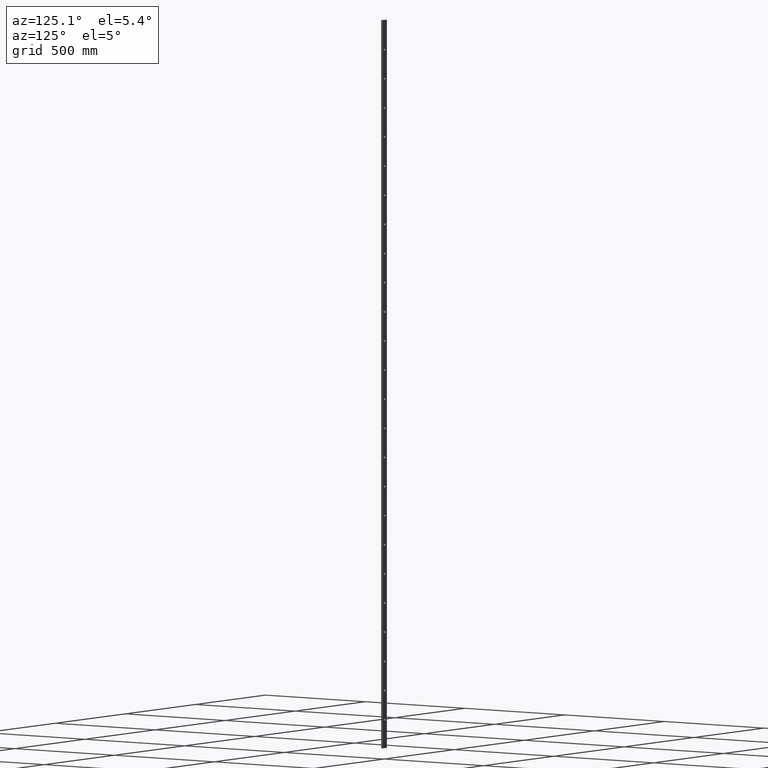
[diagram: clean part render]
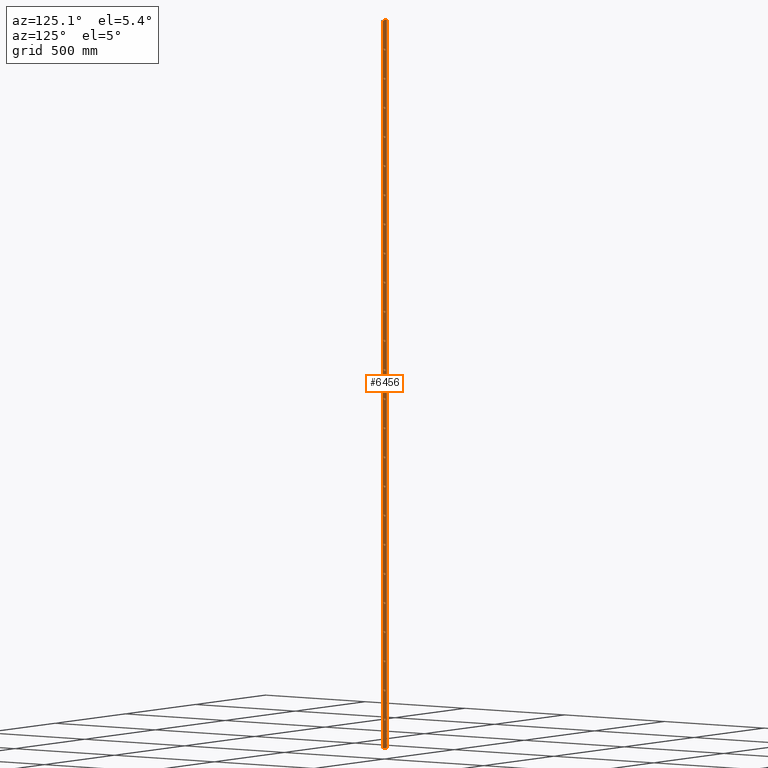
[diagram: same view with one face highlighted and labeled with its STEP entity id]
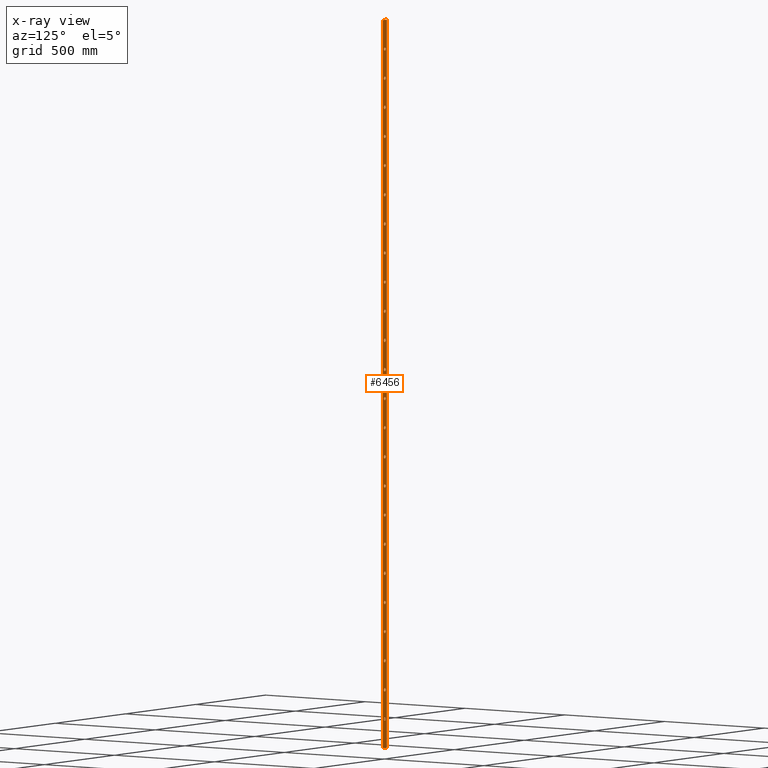
[diagram: x-ray of the same camera — body ghosted, the highlighted face saturated]
A machine part, auxiliary view. The second image highlights one B-rep face of the part: STEP entity #6456.
The next image is the same camera in x-ray: the body ghosted, the highlighted face saturated — about 0% of this face is hidden behind the body in this view.
In plain terms, the highlighted planar face has unit normal (-0, 1, 0).
Its self-contained STEP definition (entity closure, byte-faithful):
#131 = EDGE_CURVE ( 'NONE', #6236, #6236, #2662, .T. ) ;
#156 = PLANE ( 'NONE',  #9725 ) ;
#167 = EDGE_CURVE ( 'NONE', #7438, #1329, #10499, .T. ) ;
#171 = FACE_BOUND ( 'NONE', #12069, .T. ) ;
#186 = FACE_BOUND ( 'NONE', #2432, .T. ) ;
#188 = DIRECTION ( 'NONE',  ( 0.000000000000000000, 1.000000000000000000, 0.000000000000000000 ) ) ;
#196 = DIRECTION ( 'NONE',  ( 0.000000000000000000, 0.000000000000000000, -1.000000000000000000 ) ) ;
#199 = EDGE_CURVE ( 'NONE', #7475, #7475, #3536, .T. ) ;
#267 = LINE ( 'NONE', #3348, #620 ) ;
#318 = CARTESIAN_POINT ( 'NONE',  ( 0.000000000000000000, 4.000000000000000000, -1020.000000000000000 ) ) ;
#473 = AXIS2_PLACEMENT_3D ( 'NONE', #5927, #188, #2380 ) ;
#531 = EDGE_CURVE ( 'NONE', #6603, #6603, #7193, .T. ) ;
#620 = VECTOR ( 'NONE', #14388, 1000.000000000000000 ) ;
#813 = EDGE_LOOP ( 'NONE', ( #7360 ) ) ;
#897 = EDGE_LOOP ( 'NONE', ( #9498 ) ) ;
#951 = CIRCLE ( 'NONE', #3714, 6.500000000000117240 ) ;
#955 = VERTEX_POINT ( 'NONE', #5858 ) ;
#1017 = AXIS2_PLACEMENT_3D ( 'NONE', #2824, #3904, #4961 ) ;
#1025 = CARTESIAN_POINT ( 'NONE',  ( 0.000000000000000000, 4.000000000000000000, 1020.000000000000000 ) ) ;
#1040 = ORIENTED_EDGE ( 'NONE', *, *, #9053, .F. ) ;
#1109 = EDGE_LOOP ( 'NONE', ( #1474 ) ) ;
#1133 = CARTESIAN_POINT ( 'NONE',  ( 0.000000000000000000, 4.000000000000000000, -1259.999999999999773 ) ) ;
#1138 = DIRECTION ( 'NONE',  ( 0.000000000000000000, 1.000000000000000000, 0.000000000000000000 ) ) ;
#1211 = CARTESIAN_POINT ( 'NONE',  ( 0.000000000000000000, 4.000000000000000000, -899.9999999999998863 ) ) ;
#1246 = EDGE_LOOP ( 'NONE', ( #8042 ) ) ;
#1297 = CARTESIAN_POINT ( 'NONE',  ( 0.000000000000000000, 4.000000000000000000, 186.5000000000000568 ) ) ;
#1325 = EDGE_CURVE ( 'NONE', #5884, #5884, #5788, .T. ) ;
#1329 = VERTEX_POINT ( 'NONE', #2115 ) ;
#1337 = EDGE_CURVE ( 'NONE', #11476, #11476, #3524, .T. ) ;
#1394 = CARTESIAN_POINT ( 'NONE',  ( 0.000000000000000000, 4.000000000000000000, 306.4999999999996021 ) ) ;
#1474 = ORIENTED_EDGE ( 'NONE', *, *, #1337, .F. ) ;
#1498 = VERTEX_POINT ( 'NONE', #8003 ) ;
#1561 = EDGE_LOOP ( 'NONE', ( #13700 ) ) ;
#1576 = DIRECTION ( 'NONE',  ( 0.000000000000000000, 0.000000000000000000, 1.000000000000000000 ) ) ;
#1579 = AXIS2_PLACEMENT_3D ( 'NONE', #1025, #13369, #7746 ) ;
#1653 = ORIENTED_EDGE ( 'NONE', *, *, #11937, .F. ) ;
#1727 = EDGE_CURVE ( 'NONE', #1329, #7696, #12194, .T. ) ;
#1734 = EDGE_CURVE ( 'NONE', #2923, #2923, #9197, .T. ) ;
#1743 = CIRCLE ( 'NONE', #4511, 6.500000000000172307 ) ;
#1766 = AXIS2_PLACEMENT_3D ( 'NONE', #11488, #11578, #4783 ) ;
#1872 = VERTEX_POINT ( 'NONE', #4631 ) ;
#1935 = CIRCLE ( 'NONE', #3026, 6.499999999999950262 ) ;
#1962 = FACE_OUTER_BOUND ( 'NONE', #5659, .T. ) ;
#2012 = ORIENTED_EDGE ( 'NONE', *, *, #10100, .F. ) ;
#2059 = EDGE_CURVE ( 'NONE', #7807, #7807, #7627, .T. ) ;
#2115 = CARTESIAN_POINT ( 'NONE',  ( 15.00000000000000000, 4.000000000000000000, -1500.000000000000000 ) ) ;
#2153 = EDGE_LOOP ( 'NONE', ( #13899 ) ) ;
#2271 = DIRECTION ( 'NONE',  ( 0.000000000000000000, 0.000000000000000000, 1.000000000000000000 ) ) ;
#2313 = FACE_BOUND ( 'NONE', #3965, .T. ) ;
#2380 = DIRECTION ( 'NONE',  ( 0.000000000000000000, 0.000000000000000000, 1.000000000000000000 ) ) ;
#2427 = AXIS2_PLACEMENT_3D ( 'NONE', #6413, #10844, #4181 ) ;
#2432 = EDGE_LOOP ( 'NONE', ( #10359 ) ) ;
#2444 = DIRECTION ( 'NONE',  ( 0.000000000000000000, -0.000000000000000000, 1.000000000000000000 ) ) ;
#2451 = EDGE_CURVE ( 'NONE', #8509, #8509, #951, .T. ) ;
#2491 = VECTOR ( 'NONE', #9167, 1000.000000000000000 ) ;
#2538 = CARTESIAN_POINT ( 'NONE',  ( 0.000000000000000000, 4.000000000000000000, 906.5000000000000000 ) ) ;
#2596 = DIRECTION ( 'NONE',  ( 0.000000000000000000, 0.000000000000000000, 1.000000000000000000 ) ) ;
#2644 = DIRECTION ( 'NONE',  ( 0.000000000000000000, 0.000000000000000000, 1.000000000000000000 ) ) ;
#2662 = CIRCLE ( 'NONE', #14003, 6.499999999999950262 ) ;
#2697 = DIRECTION ( 'NONE',  ( 0.000000000000000000, 1.000000000000000000, 0.000000000000000000 ) ) ;
#2741 = DIRECTION ( 'NONE',  ( 0.000000000000000000, 1.000000000000000000, 0.000000000000000000 ) ) ;
#2784 = CIRCLE ( 'NONE', #4969, 6.500000000000061284 ) ;
#2789 = CARTESIAN_POINT ( 'NONE',  ( 0.000000000000000000, 4.000000000000000000, -300.0000000000000568 ) ) ;
#2824 = CARTESIAN_POINT ( 'NONE',  ( 0.000000000000000000, 4.000000000000000000, -60.00000000000005684 ) ) ;
#2841 = FACE_BOUND ( 'NONE', #2153, .T. ) ;
#2855 = EDGE_CURVE ( 'NONE', #1872, #1872, #8287, .T. ) ;
#2885 = EDGE_LOOP ( 'NONE', ( #1040 ) ) ;
#2923 = VERTEX_POINT ( 'NONE', #9255 ) ;
#2926 = EDGE_CURVE ( 'NONE', #1498, #1498, #7263, .T. ) ;
#2983 = AXIS2_PLACEMENT_3D ( 'NONE', #14453, #1138, #4478 ) ;
#3026 = AXIS2_PLACEMENT_3D ( 'NONE', #1211, #3484, #9137 ) ;
#3065 = CARTESIAN_POINT ( 'NONE',  ( 0.000000000000000000, 4.000000000000000000, 659.9999999999998863 ) ) ;
#3127 = ORIENTED_EDGE ( 'NONE', *, *, #2451, .F. ) ;
#3204 = FACE_BOUND ( 'NONE', #1109, .T. ) ;
#3300 = DIRECTION ( 'NONE',  ( 0.000000000000000000, 0.000000000000000000, 1.000000000000000000 ) ) ;
#3337 = ORIENTED_EDGE ( 'NONE', *, *, #1325, .F. ) ;
#3347 = CARTESIAN_POINT ( 'NONE',  ( 0.000000000000000000, 4.000000000000000000, 779.9999999999998863 ) ) ;
#3348 = CARTESIAN_POINT ( 'NONE',  ( -15.00000000000000000, 4.000000000000000000, 1500.000000000000000 ) ) ;
#3382 = CIRCLE ( 'NONE', #5720, 6.499999999999950262 ) ;
#3469 = CARTESIAN_POINT ( 'NONE',  ( 0.000000000000000000, 4.000000000000000000, 0.000000000000000000 ) ) ;
#3484 = DIRECTION ( 'NONE',  ( 0.000000000000000000, 1.000000000000000000, 0.000000000000000000 ) ) ;
#3492 = CARTESIAN_POINT ( 'NONE',  ( 0.000000000000000000, 4.000000000000000000, -419.9999999999999432 ) ) ;
#3517 = CARTESIAN_POINT ( 'NONE',  ( 0.000000000000000000, 4.000000000000000000, 786.5000000000000000 ) ) ;
#3524 = CIRCLE ( 'NONE', #13184, 6.499999999999728217 ) ;
#3536 = CIRCLE ( 'NONE', #8769, 6.499999999999950262 ) ;
#3556 = ORIENTED_EDGE ( 'NONE', *, *, #131, .F. ) ;
#3557 = ORIENTED_EDGE ( 'NONE', *, *, #9285, .F. ) ;
#3596 = EDGE_LOOP ( 'NONE', ( #11047 ) ) ;
#3613 = CARTESIAN_POINT ( 'NONE',  ( 0.000000000000000000, 4.000000000000000000, -1133.500000000000227 ) ) ;
#3714 = AXIS2_PLACEMENT_3D ( 'NONE', #7093, #2741, #9405 ) ;
#3845 = EDGE_LOOP ( 'NONE', ( #2012 ) ) ;
#3888 = ORIENTED_EDGE ( 'NONE', *, *, #10950, .F. ) ;
#3891 = DIRECTION ( 'NONE',  ( 0.000000000000000000, 1.000000000000000000, 0.000000000000000000 ) ) ;
#3904 = DIRECTION ( 'NONE',  ( 0.000000000000000000, 1.000000000000000000, 0.000000000000000000 ) ) ;
#3965 = EDGE_LOOP ( 'NONE', ( #14012 ) ) ;
#4008 = AXIS2_PLACEMENT_3D ( 'NONE', #318, #10256, #4752 ) ;
#4059 = FACE_BOUND ( 'NONE', #897, .T. ) ;
#4074 = DIRECTION ( 'NONE',  ( 0.000000000000000000, 1.000000000000000000, 0.000000000000000000 ) ) ;
#4075 = FACE_BOUND ( 'NONE', #11304, .T. ) ;
#4181 = DIRECTION ( 'NONE',  ( 0.000000000000000000, 0.000000000000000000, 1.000000000000000000 ) ) ;
#4308 = ORIENTED_EDGE ( 'NONE', *, *, #6267, .F. ) ;
#4342 = EDGE_CURVE ( 'NONE', #4481, #4481, #7761, .T. ) ;
#4363 = CIRCLE ( 'NONE', #7519, 6.499999999999950262 ) ;
#4400 = FACE_BOUND ( 'NONE', #13598, .T. ) ;
#4420 = DIRECTION ( 'NONE',  ( 0.000000000000000000, 1.000000000000000000, 0.000000000000000000 ) ) ;
#4437 = CARTESIAN_POINT ( 'NONE',  ( -15.00000000000000000, 4.000000000000000000, 1500.000000000000000 ) ) ;
#4470 = AXIS2_PLACEMENT_3D ( 'NONE', #8393, #12995, #5077 ) ;
#4478 = DIRECTION ( 'NONE',  ( 0.000000000000000000, 0.000000000000000000, 1.000000000000000000 ) ) ;
#4481 = VERTEX_POINT ( 'NONE', #1394 ) ;
#4484 = ORIENTED_EDGE ( 'NONE', *, *, #6442, .T. ) ;
#4511 = AXIS2_PLACEMENT_3D ( 'NONE', #2789, #10584, #2596 ) ;
#4566 = DIRECTION ( 'NONE',  ( 0.000000000000000000, 0.000000000000000000, 1.000000000000000000 ) ) ;
#4583 = CARTESIAN_POINT ( 'NONE',  ( 0.000000000000000000, 4.000000000000000000, 1146.499999999999773 ) ) ;
#4631 = CARTESIAN_POINT ( 'NONE',  ( 0.000000000000000000, 4.000000000000000000, 66.49999999999995737 ) ) ;
#4662 = CARTESIAN_POINT ( 'NONE',  ( 15.00000000000000000, 4.000000000000000000, -1500.000000000000000 ) ) ;
#4680 = CARTESIAN_POINT ( 'NONE',  ( 0.000000000000000000, 4.000000000000000000, -533.5000000000001137 ) ) ;
#4688 = CARTESIAN_POINT ( 'NONE',  ( 15.00000000000000000, 4.000000000000000000, 1500.000000000000000 ) ) ;
#4746 = FACE_BOUND ( 'NONE', #813, .T. ) ;
#4752 = DIRECTION ( 'NONE',  ( 0.000000000000000000, 0.000000000000000000, 1.000000000000000000 ) ) ;
#4766 = CARTESIAN_POINT ( 'NONE',  ( 0.000000000000000000, 4.000000000000000000, -53.50000000000009948 ) ) ;
#4783 = DIRECTION ( 'NONE',  ( 0.000000000000000000, 0.000000000000000000, 1.000000000000000000 ) ) ;
#4796 = EDGE_CURVE ( 'NONE', #11133, #11133, #11416, .T. ) ;
#4883 = EDGE_LOOP ( 'NONE', ( #6658 ) ) ;
#4911 = FACE_BOUND ( 'NONE', #3596, .T. ) ;
#4961 = DIRECTION ( 'NONE',  ( 0.000000000000000000, 0.000000000000000000, 1.000000000000000000 ) ) ;
#4969 = AXIS2_PLACEMENT_3D ( 'NONE', #3347, #4420, #2271 ) ;
#5033 = DIRECTION ( 'NONE',  ( 0.000000000000000000, 0.000000000000000000, 1.000000000000000000 ) ) ;
#5053 = CARTESIAN_POINT ( 'NONE',  ( 0.000000000000000000, 4.000000000000000000, -540.0000000000000000 ) ) ;
#5077 = DIRECTION ( 'NONE',  ( 0.000000000000000000, 0.000000000000000000, 1.000000000000000000 ) ) ;
#5266 = ORIENTED_EDGE ( 'NONE', *, *, #8031, .F. ) ;
#5305 = CARTESIAN_POINT ( 'NONE',  ( -15.00000000000000000, 4.000000000000000000, 1500.000000000000000 ) ) ;
#5330 = AXIS2_PLACEMENT_3D ( 'NONE', #13157, #12188, #3300 ) ;
#5475 = ORIENTED_EDGE ( 'NONE', *, *, #2059, .F. ) ;
#5525 = EDGE_CURVE ( 'NONE', #7296, #7296, #12631, .T. ) ;
#5531 = VERTEX_POINT ( 'NONE', #3613 ) ;
#5558 = CARTESIAN_POINT ( 'NONE',  ( -15.00000000000000000, 4.000000000000000000, -1500.000000000000000 ) ) ;
#5619 = ORIENTED_EDGE ( 'NONE', *, *, #1727, .T. ) ;
#5659 = EDGE_LOOP ( 'NONE', ( #4484, #13820, #5619, #13677 ) ) ;
#5720 = AXIS2_PLACEMENT_3D ( 'NONE', #6212, #2697, #5033 ) ;
#5723 = CARTESIAN_POINT ( 'NONE',  ( 0.000000000000000000, 4.000000000000000000, -773.5000000000003411 ) ) ;
#5756 = CARTESIAN_POINT ( 'NONE',  ( 0.000000000000000000, 4.000000000000000000, 1140.000000000000000 ) ) ;
#5763 = CARTESIAN_POINT ( 'NONE',  ( 0.000000000000000000, 4.000000000000000000, -893.5000000000000000 ) ) ;
#5788 = CIRCLE ( 'NONE', #4470, 6.499999999999950262 ) ;
#5815 = CIRCLE ( 'NONE', #13938, 6.499999999999950262 ) ;
#5858 = CARTESIAN_POINT ( 'NONE',  ( 0.000000000000000000, 4.000000000000000000, -293.4999999999998863 ) ) ;
#5873 = VERTEX_POINT ( 'NONE', #5723 ) ;
#5884 = VERTEX_POINT ( 'NONE', #10181 ) ;
#5904 = CARTESIAN_POINT ( 'NONE',  ( 0.000000000000000000, 4.000000000000000000, 1266.499999999999545 ) ) ;
#5927 = CARTESIAN_POINT ( 'NONE',  ( 0.000000000000000000, 4.000000000000000000, 899.9999999999998863 ) ) ;
#5970 = LINE ( 'NONE', #4437, #2491 ) ;
#6202 = DIRECTION ( 'NONE',  ( 0.000000000000000000, 0.000000000000000000, 1.000000000000000000 ) ) ;
#6212 = CARTESIAN_POINT ( 'NONE',  ( 0.000000000000000000, 4.000000000000000000, -780.0000000000002274 ) ) ;
#6236 = VERTEX_POINT ( 'NONE', #4583 ) ;
#6267 = EDGE_CURVE ( 'NONE', #13582, #13582, #8782, .T. ) ;
#6319 = FACE_BOUND ( 'NONE', #1246, .T. ) ;
#6388 = EDGE_LOOP ( 'NONE', ( #3557 ) ) ;
#6413 = CARTESIAN_POINT ( 'NONE',  ( 0.000000000000000000, 4.000000000000000000, 539.9999999999998863 ) ) ;
#6442 = EDGE_CURVE ( 'NONE', #7641, #7438, #5970, .T. ) ;
#6456 = ADVANCED_FACE ( 'NONE', ( #6690, #14381, #4075, #2841, #11563, #7735, #4746, #2313, #4911, #14202, #3204, #8601, #1962, #13503, #11404, #186, #6674, #9444, #4400, #11035, #6319, #171, #12778, #11734, #4059 ), #156, .T. ) ;
#6603 = VERTEX_POINT ( 'NONE', #2538 ) ;
#6658 = ORIENTED_EDGE ( 'NONE', *, *, #10889, .F. ) ;
#6674 = FACE_BOUND ( 'NONE', #1561, .T. ) ;
#6690 = FACE_BOUND ( 'NONE', #9675, .T. ) ;
#6922 = DIRECTION ( 'NONE',  ( -1.000000000000000000, 0.000000000000000000, 0.000000000000000000 ) ) ;
#7044 = CARTESIAN_POINT ( 'NONE',  ( 0.000000000000000000, 4.000000000000000000, 419.9999999999999432 ) ) ;
#7051 = DIRECTION ( 'NONE',  ( 0.000000000000000000, 0.000000000000000000, 1.000000000000000000 ) ) ;
#7065 = EDGE_LOOP ( 'NONE', ( #4308 ) ) ;
#7093 = CARTESIAN_POINT ( 'NONE',  ( 0.000000000000000000, 4.000000000000000000, 179.9999999999999432 ) ) ;
#7193 = CIRCLE ( 'NONE', #473, 6.500000000000061284 ) ;
#7240 = DIRECTION ( 'NONE',  ( 0.000000000000000000, 1.000000000000000000, 0.000000000000000000 ) ) ;
#7263 = CIRCLE ( 'NONE', #2427, 6.500000000000061284 ) ;
#7296 = VERTEX_POINT ( 'NONE', #13633 ) ;
#7360 = ORIENTED_EDGE ( 'NONE', *, *, #4342, .F. ) ;
#7421 = DIRECTION ( 'NONE',  ( 0.000000000000000000, 1.000000000000000000, 0.000000000000000000 ) ) ;
#7438 = VERTEX_POINT ( 'NONE', #4688 ) ;
#7446 = CARTESIAN_POINT ( 'NONE',  ( 0.000000000000000000, 4.000000000000000000, 60.00000000000005684 ) ) ;
#7469 = DIRECTION ( 'NONE',  ( 0.000000000000000000, 0.000000000000000000, 1.000000000000000000 ) ) ;
#7475 = VERTEX_POINT ( 'NONE', #10273 ) ;
#7476 = VECTOR ( 'NONE', #6922, 1000.000000000000000 ) ;
#7519 = AXIS2_PLACEMENT_3D ( 'NONE', #1133, #10110, #4566 ) ;
#7555 = DIRECTION ( 'NONE',  ( 0.000000000000000000, 1.000000000000000000, 0.000000000000000000 ) ) ;
#7567 = VECTOR ( 'NONE', #196, 1000.000000000000000 ) ;
#7627 = CIRCLE ( 'NONE', #2983, 6.499999999999950262 ) ;
#7631 = VERTEX_POINT ( 'NONE', #3517 ) ;
#7641 = VERTEX_POINT ( 'NONE', #5305 ) ;
#7696 = VERTEX_POINT ( 'NONE', #5558 ) ;
#7735 = FACE_BOUND ( 'NONE', #10309, .T. ) ;
#7746 = DIRECTION ( 'NONE',  ( 0.000000000000000000, 0.000000000000000000, 1.000000000000000000 ) ) ;
#7761 = CIRCLE ( 'NONE', #5330, 6.499999999999783284 ) ;
#7807 = VERTEX_POINT ( 'NONE', #8092 ) ;
#7965 = EDGE_CURVE ( 'NONE', #5531, #5531, #5815, .T. ) ;
#7982 = DIRECTION ( 'NONE',  ( 0.000000000000000000, 0.000000000000000000, 1.000000000000000000 ) ) ;
#7995 = CARTESIAN_POINT ( 'NONE',  ( 15.00000000000000000, 4.000000000000000000, 1500.000000000000000 ) ) ;
#8001 = DIRECTION ( 'NONE',  ( -0.000000000000000000, 1.000000000000000000, 0.000000000000000000 ) ) ;
#8003 = CARTESIAN_POINT ( 'NONE',  ( 0.000000000000000000, 4.000000000000000000, 546.5000000000000000 ) ) ;
#8031 = EDGE_CURVE ( 'NONE', #5873, #5873, #3382, .T. ) ;
#8042 = ORIENTED_EDGE ( 'NONE', *, *, #10963, .F. ) ;
#8046 = CARTESIAN_POINT ( 'NONE',  ( 0.000000000000000000, 4.000000000000000000, 1386.499999999999773 ) ) ;
#8092 = CARTESIAN_POINT ( 'NONE',  ( 0.000000000000000000, 4.000000000000000000, -653.5000000000002274 ) ) ;
#8190 = AXIS2_PLACEMENT_3D ( 'NONE', #7446, #4074, #11885 ) ;
#8287 = CIRCLE ( 'NONE', #8190, 6.499999999999908518 ) ;
#8393 = CARTESIAN_POINT ( 'NONE',  ( 0.000000000000000000, 4.000000000000000000, -180.0000000000001705 ) ) ;
#8509 = VERTEX_POINT ( 'NONE', #1297 ) ;
#8601 = FACE_BOUND ( 'NONE', #7065, .T. ) ;
#8710 = EDGE_LOOP ( 'NONE', ( #3337 ) ) ;
#8769 = AXIS2_PLACEMENT_3D ( 'NONE', #9433, #3891, #1576 ) ;
#8782 = CIRCLE ( 'NONE', #1766, 6.499999999999950262 ) ;
#8850 = ORIENTED_EDGE ( 'NONE', *, *, #1734, .F. ) ;
#9015 = VERTEX_POINT ( 'NONE', #11424 ) ;
#9053 = EDGE_CURVE ( 'NONE', #9351, #9351, #10870, .T. ) ;
#9137 = DIRECTION ( 'NONE',  ( 0.000000000000000000, 0.000000000000000000, 1.000000000000000000 ) ) ;
#9167 = DIRECTION ( 'NONE',  ( 1.000000000000000000, 0.000000000000000000, 0.000000000000000000 ) ) ;
#9170 = CARTESIAN_POINT ( 'NONE',  ( 0.000000000000000000, 4.000000000000000000, 1026.500000000000000 ) ) ;
#9197 = CIRCLE ( 'NONE', #4008, 6.499999999999950262 ) ;
#9255 = CARTESIAN_POINT ( 'NONE',  ( 0.000000000000000000, 4.000000000000000000, -1013.500000000000114 ) ) ;
#9274 = DIRECTION ( 'NONE',  ( 0.000000000000000000, 1.000000000000000000, 0.000000000000000000 ) ) ;
#9285 = EDGE_CURVE ( 'NONE', #13228, #13228, #11735, .T. ) ;
#9351 = VERTEX_POINT ( 'NONE', #9170 ) ;
#9405 = DIRECTION ( 'NONE',  ( 0.000000000000000000, 0.000000000000000000, 1.000000000000000000 ) ) ;
#9433 = CARTESIAN_POINT ( 'NONE',  ( 0.000000000000000000, 4.000000000000000000, -1380.000000000000000 ) ) ;
#9444 = FACE_BOUND ( 'NONE', #13001, .T. ) ;
#9484 = DIRECTION ( 'NONE',  ( 0.000000000000000000, 0.000000000000000000, 1.000000000000000000 ) ) ;
#9498 = ORIENTED_EDGE ( 'NONE', *, *, #199, .F. ) ;
#9560 = DIRECTION ( 'NONE',  ( 0.000000000000000000, 1.000000000000000000, 0.000000000000000000 ) ) ;
#9675 = EDGE_LOOP ( 'NONE', ( #1653 ) ) ;
#9692 = EDGE_LOOP ( 'NONE', ( #14074 ) ) ;
#9725 = AXIS2_PLACEMENT_3D ( 'NONE', #3469, #8001, #2444 ) ;
#10100 = EDGE_CURVE ( 'NONE', #14444, #14444, #12593, .T. ) ;
#10110 = DIRECTION ( 'NONE',  ( 0.000000000000000000, 1.000000000000000000, 0.000000000000000000 ) ) ;
#10181 = CARTESIAN_POINT ( 'NONE',  ( 0.000000000000000000, 4.000000000000000000, -173.5000000000001990 ) ) ;
#10256 = DIRECTION ( 'NONE',  ( 0.000000000000000000, 1.000000000000000000, 0.000000000000000000 ) ) ;
#10273 = CARTESIAN_POINT ( 'NONE',  ( 0.000000000000000000, 4.000000000000000000, -1373.500000000000000 ) ) ;
#10309 = EDGE_LOOP ( 'NONE', ( #10392 ) ) ;
#10359 = ORIENTED_EDGE ( 'NONE', *, *, #531, .F. ) ;
#10368 = CARTESIAN_POINT ( 'NONE',  ( 0.000000000000000000, 4.000000000000000000, -413.4999999999997726 ) ) ;
#10392 = ORIENTED_EDGE ( 'NONE', *, *, #2855, .F. ) ;
#10462 = CIRCLE ( 'NONE', #10973, 6.499999999999895195 ) ;
#10499 = LINE ( 'NONE', #7995, #7567 ) ;
#10584 = DIRECTION ( 'NONE',  ( 0.000000000000000000, 1.000000000000000000, 0.000000000000000000 ) ) ;
#10636 = CARTESIAN_POINT ( 'NONE',  ( 0.000000000000000000, 4.000000000000000000, 1259.999999999999773 ) ) ;
#10844 = DIRECTION ( 'NONE',  ( 0.000000000000000000, 1.000000000000000000, 0.000000000000000000 ) ) ;
#10870 = CIRCLE ( 'NONE', #1579, 6.499999999999950262 ) ;
#10889 = EDGE_CURVE ( 'NONE', #11462, #11462, #1935, .T. ) ;
#10950 = EDGE_CURVE ( 'NONE', #9015, #9015, #10462, .T. ) ;
#10963 = EDGE_CURVE ( 'NONE', #955, #955, #1743, .T. ) ;
#10973 = AXIS2_PLACEMENT_3D ( 'NONE', #7044, #7240, #2644 ) ;
#11031 = AXIS2_PLACEMENT_3D ( 'NONE', #3065, #7555, #7469 ) ;
#11035 = FACE_BOUND ( 'NONE', #3845, .T. ) ;
#11047 = ORIENTED_EDGE ( 'NONE', *, *, #12126, .F. ) ;
#11119 = VERTEX_POINT ( 'NONE', #12552 ) ;
#11133 = VERTEX_POINT ( 'NONE', #4680 ) ;
#11304 = EDGE_LOOP ( 'NONE', ( #5266 ) ) ;
#11401 = DIRECTION ( 'NONE',  ( 0.000000000000000000, 1.000000000000000000, 0.000000000000000000 ) ) ;
#11404 = FACE_BOUND ( 'NONE', #14350, .T. ) ;
#11416 = CIRCLE ( 'NONE', #14404, 6.499999999999950262 ) ;
#11424 = CARTESIAN_POINT ( 'NONE',  ( 0.000000000000000000, 4.000000000000000000, 426.4999999999998295 ) ) ;
#11462 = VERTEX_POINT ( 'NONE', #5763 ) ;
#11466 = EDGE_LOOP ( 'NONE', ( #8850 ) ) ;
#11476 = VERTEX_POINT ( 'NONE', #5904 ) ;
#11488 = CARTESIAN_POINT ( 'NONE',  ( 0.000000000000000000, 4.000000000000000000, 1380.000000000000000 ) ) ;
#11563 = FACE_BOUND ( 'NONE', #8710, .T. ) ;
#11578 = DIRECTION ( 'NONE',  ( 0.000000000000000000, 1.000000000000000000, 0.000000000000000000 ) ) ;
#11734 = FACE_BOUND ( 'NONE', #9692, .T. ) ;
#11735 = CIRCLE ( 'NONE', #12823, 6.500000000000172307 ) ;
#11885 = DIRECTION ( 'NONE',  ( 0.000000000000000000, 0.000000000000000000, 1.000000000000000000 ) ) ;
#11937 = EDGE_CURVE ( 'NONE', #11119, #11119, #4363, .T. ) ;
#12069 = EDGE_LOOP ( 'NONE', ( #5475 ) ) ;
#12126 = EDGE_CURVE ( 'NONE', #7631, #7631, #2784, .T. ) ;
#12188 = DIRECTION ( 'NONE',  ( 0.000000000000000000, 1.000000000000000000, 0.000000000000000000 ) ) ;
#12194 = LINE ( 'NONE', #4662, #7476 ) ;
#12399 = DIRECTION ( 'NONE',  ( 0.000000000000000000, 0.000000000000000000, 1.000000000000000000 ) ) ;
#12552 = CARTESIAN_POINT ( 'NONE',  ( 0.000000000000000000, 4.000000000000000000, -1253.499999999999773 ) ) ;
#12593 = CIRCLE ( 'NONE', #1017, 6.499999999999950262 ) ;
#12631 = CIRCLE ( 'NONE', #11031, 6.500000000000061284 ) ;
#12778 = FACE_BOUND ( 'NONE', #4883, .T. ) ;
#12823 = AXIS2_PLACEMENT_3D ( 'NONE', #3492, #11401, #7982 ) ;
#12995 = DIRECTION ( 'NONE',  ( 0.000000000000000000, 1.000000000000000000, 0.000000000000000000 ) ) ;
#13001 = EDGE_LOOP ( 'NONE', ( #3888 ) ) ;
#13157 = CARTESIAN_POINT ( 'NONE',  ( 0.000000000000000000, 4.000000000000000000, 299.9999999999998295 ) ) ;
#13184 = AXIS2_PLACEMENT_3D ( 'NONE', #10636, #9560, #6202 ) ;
#13228 = VERTEX_POINT ( 'NONE', #10368 ) ;
#13369 = DIRECTION ( 'NONE',  ( 0.000000000000000000, 1.000000000000000000, 0.000000000000000000 ) ) ;
#13503 = FACE_BOUND ( 'NONE', #6388, .T. ) ;
#13530 = DIRECTION ( 'NONE',  ( 0.000000000000000000, 1.000000000000000000, 0.000000000000000000 ) ) ;
#13582 = VERTEX_POINT ( 'NONE', #8046 ) ;
#13598 = EDGE_LOOP ( 'NONE', ( #3127 ) ) ;
#13633 = CARTESIAN_POINT ( 'NONE',  ( 0.000000000000000000, 4.000000000000000000, 666.5000000000000000 ) ) ;
#13677 = ORIENTED_EDGE ( 'NONE', *, *, #13991, .T. ) ;
#13700 = ORIENTED_EDGE ( 'NONE', *, *, #5525, .F. ) ;
#13744 = CARTESIAN_POINT ( 'NONE',  ( 0.000000000000000000, 4.000000000000000000, -1140.000000000000227 ) ) ;
#13820 = ORIENTED_EDGE ( 'NONE', *, *, #167, .T. ) ;
#13899 = ORIENTED_EDGE ( 'NONE', *, *, #4796, .F. ) ;
#13938 = AXIS2_PLACEMENT_3D ( 'NONE', #13744, #9274, #7051 ) ;
#13991 = EDGE_CURVE ( 'NONE', #7696, #7641, #267, .T. ) ;
#14003 = AXIS2_PLACEMENT_3D ( 'NONE', #5756, #13530, #12399 ) ;
#14012 = ORIENTED_EDGE ( 'NONE', *, *, #2926, .F. ) ;
#14074 = ORIENTED_EDGE ( 'NONE', *, *, #7965, .F. ) ;
#14202 = FACE_BOUND ( 'NONE', #2885, .T. ) ;
#14350 = EDGE_LOOP ( 'NONE', ( #3556 ) ) ;
#14381 = FACE_BOUND ( 'NONE', #11466, .T. ) ;
#14388 = DIRECTION ( 'NONE',  ( -0.000000000000000000, -0.000000000000000000, 1.000000000000000000 ) ) ;
#14404 = AXIS2_PLACEMENT_3D ( 'NONE', #5053, #7421, #9484 ) ;
#14444 = VERTEX_POINT ( 'NONE', #4766 ) ;
#14453 = CARTESIAN_POINT ( 'NONE',  ( 0.000000000000000000, 4.000000000000000000, -660.0000000000001137 ) ) ;